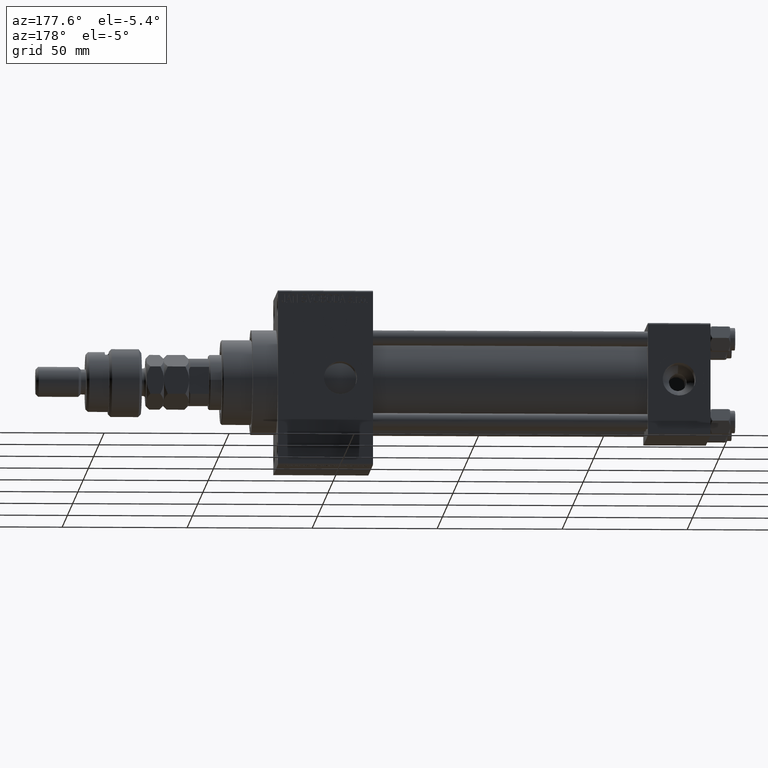
[diagram: clean part render]
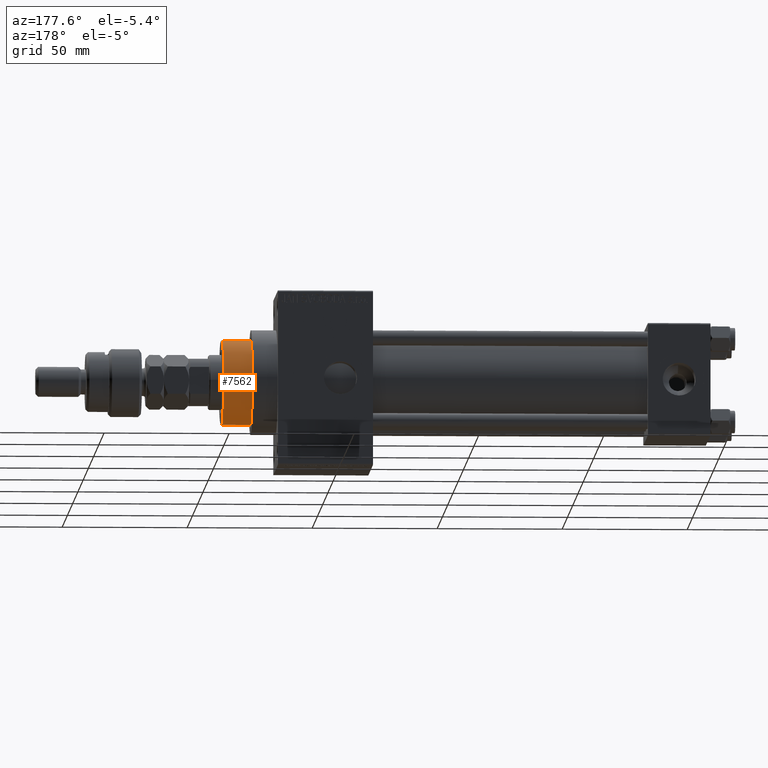
[diagram: same view with one face highlighted and labeled with its STEP entity id]
A machine part, auxiliary view. The second image highlights one B-rep face of the part: STEP entity #7562.
In plain terms, the highlighted cylindrical surface (partial cylindrical patch) has radius 17 mm, axis along (-1, 0, 0).
Its self-contained STEP definition (entity closure, byte-faithful):
#2170 = AXIS2_PLACEMENT_3D ( 'NONE', #19491, #35529, #47843 ) ;
#2355 = ORIENTED_EDGE ( 'NONE', *, *, #51024, .F. ) ;
#3213 = VERTEX_POINT ( 'NONE', #13468 ) ;
#4398 = AXIS2_PLACEMENT_3D ( 'NONE', #48187, #23784, #24033 ) ;
#7562 = ADVANCED_FACE ( 'NONE', ( #43993 ), #39793, .T. ) ;
#8049 = CIRCLE ( 'NONE', #2170, 17.00000000000000000 ) ;
#10607 = CARTESIAN_POINT ( 'NONE',  ( 17.00000000000000000, 2.081899558550500280E-15, 43.25999999999999801 ) ) ;
#13468 = CARTESIAN_POINT ( 'NONE',  ( -17.00000000000000000, 0.000000000000000000, 54.76000000000001222 ) ) ;
#13925 = DIRECTION ( 'NONE',  ( 0.000000000000000000, 0.000000000000000000, -1.000000000000000000 ) ) ;
#16094 = ORIENTED_EDGE ( 'NONE', *, *, #26373, .T. ) ;
#19491 = CARTESIAN_POINT ( 'NONE',  ( 0.000000000000000000, 0.000000000000000000, 43.25999999999999801 ) ) ;
#19952 = CARTESIAN_POINT ( 'NONE',  ( 17.00000000000000000, 2.081899558550500280E-15, 55.26000000000000512 ) ) ;
#20393 = AXIS2_PLACEMENT_3D ( 'NONE', #46221, #13925, #38344 ) ;
#23349 = CARTESIAN_POINT ( 'NONE',  ( 17.00000000000000000, 2.081899558550500280E-15, 54.76000000000001222 ) ) ;
#23784 = DIRECTION ( 'NONE',  ( -0.000000000000000000, -0.000000000000000000, -1.000000000000000000 ) ) ;
#24033 = DIRECTION ( 'NONE',  ( -1.000000000000000000, 0.000000000000000000, 0.000000000000000000 ) ) ;
#24153 = CARTESIAN_POINT ( 'NONE',  ( -17.00000000000000000, 0.000000000000000000, 43.25999999999999801 ) ) ;
#25042 = LINE ( 'NONE', #40546, #40031 ) ;
#25118 = EDGE_CURVE ( 'NONE', #3213, #50108, #25042, .T. ) ;
#26373 = EDGE_CURVE ( 'NONE', #50108, #37306, #8049, .T. ) ;
#32307 = ORIENTED_EDGE ( 'NONE', *, *, #25118, .T. ) ;
#33825 = VECTOR ( 'NONE', #51233, 1000.000000000000000 ) ;
#34101 = VERTEX_POINT ( 'NONE', #23349 ) ;
#35529 = DIRECTION ( 'NONE',  ( 0.000000000000000000, 0.000000000000000000, 1.000000000000000000 ) ) ;
#37306 = VERTEX_POINT ( 'NONE', #10607 ) ;
#38079 = ORIENTED_EDGE ( 'NONE', *, *, #49260, .T. ) ;
#38344 = DIRECTION ( 'NONE',  ( 1.000000000000000000, 0.000000000000000000, 0.000000000000000000 ) ) ;
#39091 = EDGE_LOOP ( 'NONE', ( #2355, #38079, #32307, #16094 ) ) ;
#39793 = CYLINDRICAL_SURFACE ( 'NONE', #4398, 17.00000000000000000 ) ;
#40031 = VECTOR ( 'NONE', #41055, 1000.000000000000000 ) ;
#40546 = CARTESIAN_POINT ( 'NONE',  ( -17.00000000000000000, 0.000000000000000000, 55.26000000000000512 ) ) ;
#41055 = DIRECTION ( 'NONE',  ( -0.000000000000000000, -0.000000000000000000, -1.000000000000000000 ) ) ;
#43993 = FACE_OUTER_BOUND ( 'NONE', #39091, .T. ) ;
#45543 = CIRCLE ( 'NONE', #20393, 17.00000000000000000 ) ;
#46221 = CARTESIAN_POINT ( 'NONE',  ( 0.000000000000000000, 0.000000000000000000, 54.76000000000001222 ) ) ;
#47278 = LINE ( 'NONE', #19952, #33825 ) ;
#47843 = DIRECTION ( 'NONE',  ( 1.000000000000000000, 0.000000000000000000, 0.000000000000000000 ) ) ;
#48187 = CARTESIAN_POINT ( 'NONE',  ( 0.000000000000000000, 0.000000000000000000, 55.26000000000000512 ) ) ;
#49260 = EDGE_CURVE ( 'NONE', #34101, #3213, #45543, .T. ) ;
#50108 = VERTEX_POINT ( 'NONE', #24153 ) ;
#51024 = EDGE_CURVE ( 'NONE', #34101, #37306, #47278, .T. ) ;
#51233 = DIRECTION ( 'NONE',  ( -0.000000000000000000, -0.000000000000000000, -1.000000000000000000 ) ) ;